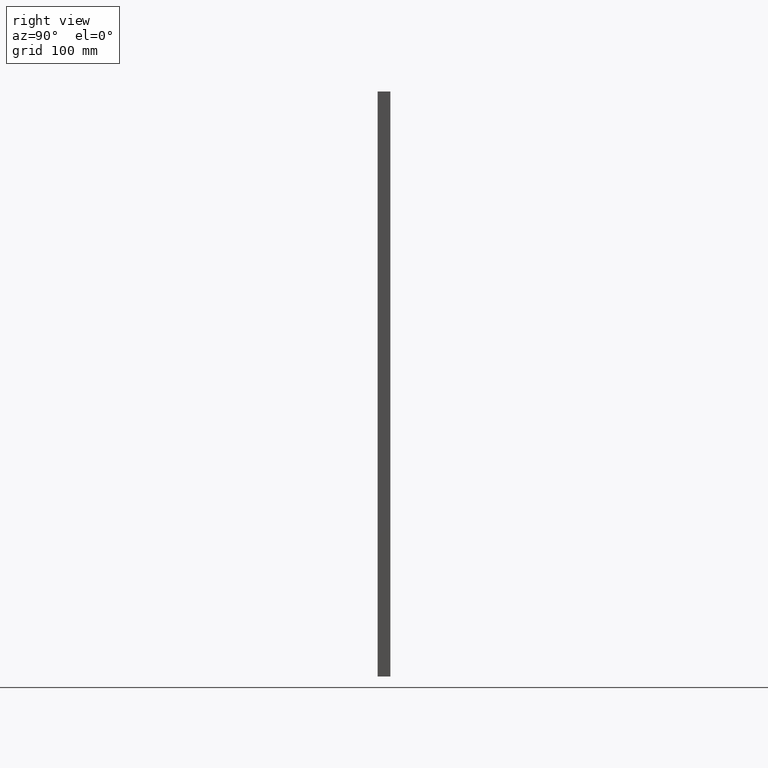
[diagram: clean part render]
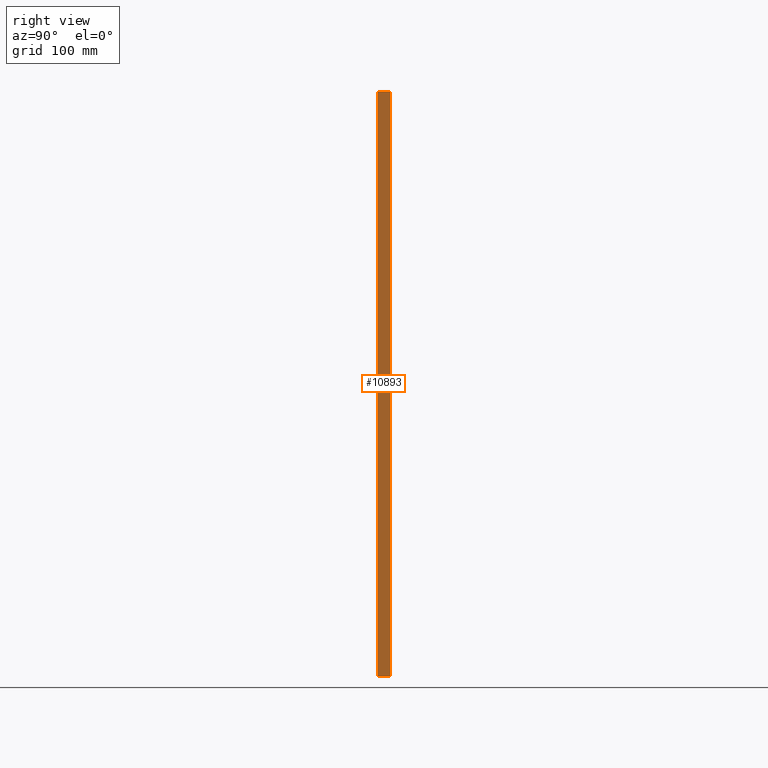
[diagram: same view with one face highlighted and labeled with its STEP entity id]
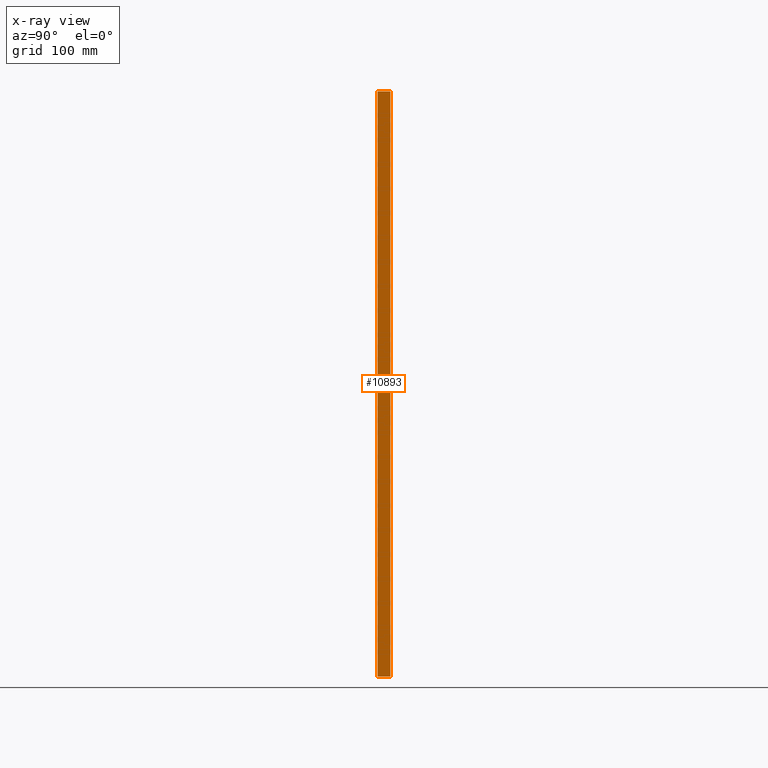
[diagram: x-ray of the same camera — body ghosted, the highlighted face saturated]
A machine part, right view. The second image highlights one B-rep face of the part: STEP entity #10893.
The next image is the same camera in x-ray: the body ghosted, the highlighted face saturated — about 0% of this face is hidden behind the body in this view.
In plain terms, the highlighted planar face has unit normal (-1, 0, 0).
Its self-contained STEP definition (entity closure, byte-faithful):
#85 = CARTESIAN_POINT ( 'NONE',  ( 225.0000000000000284, 13.00000000000000178, -300.0000000000000000 ) ) ;
#332 = CARTESIAN_POINT ( 'NONE',  ( 225.0000000000000568, 0.000000000000000000, 0.000000000000000000 ) ) ;
#702 = DIRECTION ( 'NONE',  ( -0.000000000000000000, -1.000000000000000000, -0.000000000000000000 ) ) ;
#1289 = ORIENTED_EDGE ( 'NONE', *, *, #3247, .T. ) ;
#1625 = LINE ( 'NONE', #10543, #12807 ) ;
#1787 = LINE ( 'NONE', #10127, #12411 ) ;
#2071 = CARTESIAN_POINT ( 'NONE',  ( 224.9999999999999716, 13.00000000000000178, -300.0000000000000000 ) ) ;
#3247 = EDGE_CURVE ( 'NONE', #5098, #13679, #1625, .T. ) ;
#4304 = VERTEX_POINT ( 'NONE', #8161 ) ;
#5098 = VERTEX_POINT ( 'NONE', #10541 ) ;
#5149 = DIRECTION ( 'NONE',  ( -0.000000000000000000, 1.000000000000000000, 0.000000000000000000 ) ) ;
#5151 = DIRECTION ( 'NONE',  ( -1.000000000000000000, 0.000000000000000000, 1.387778780781445922E-16 ) ) ;
#5291 = PLANE ( 'NONE',  #8990 ) ;
#5837 = LINE ( 'NONE', #332, #6912 ) ;
#6420 = DIRECTION ( 'NONE',  ( 1.387778780781445922E-16, 0.000000000000000000, 1.000000000000000000 ) ) ;
#6912 = VECTOR ( 'NONE', #12308, 1000.000000000000000 ) ;
#7491 = FACE_OUTER_BOUND ( 'NONE', #10649, .T. ) ;
#7540 = CARTESIAN_POINT ( 'NONE',  ( 225.0000000000000568, 13.00000000000000178, 300.0000000000000000 ) ) ;
#7771 = ORIENTED_EDGE ( 'NONE', *, *, #9223, .T. ) ;
#8161 = CARTESIAN_POINT ( 'NONE',  ( 225.0000000000000568, 0.000000000000000000, 300.0000000000000000 ) ) ;
#8990 = AXIS2_PLACEMENT_3D ( 'NONE', #2071, #5151, #6420 ) ;
#9223 = EDGE_CURVE ( 'NONE', #12945, #4304, #9681, .T. ) ;
#9681 = LINE ( 'NONE', #7540, #11683 ) ;
#9683 = EDGE_CURVE ( 'NONE', #5098, #4304, #5837, .T. ) ;
#10127 = CARTESIAN_POINT ( 'NONE',  ( 225.0000000000000568, 13.00000000000000178, 0.000000000000000000 ) ) ;
#10541 = CARTESIAN_POINT ( 'NONE',  ( 225.0000000000000284, 0.000000000000000000, -300.0000000000000000 ) ) ;
#10543 = CARTESIAN_POINT ( 'NONE',  ( 224.9999999999999716, 13.00000000000000178, -300.0000000000000000 ) ) ;
#10649 = EDGE_LOOP ( 'NONE', ( #1289, #11717, #7771, #12784 ) ) ;
#10713 = EDGE_CURVE ( 'NONE', #12945, #13679, #1787, .T. ) ;
#10893 = ADVANCED_FACE ( 'NONE', ( #7491 ), #5291, .F. ) ;
#11340 = DIRECTION ( 'NONE',  ( -0.000000000000000000, 0.000000000000000000, -1.000000000000000000 ) ) ;
#11683 = VECTOR ( 'NONE', #702, 1000.000000000000000 ) ;
#11717 = ORIENTED_EDGE ( 'NONE', *, *, #10713, .F. ) ;
#12308 = DIRECTION ( 'NONE',  ( 0.000000000000000000, -0.000000000000000000, 1.000000000000000000 ) ) ;
#12411 = VECTOR ( 'NONE', #11340, 1000.000000000000000 ) ;
#12784 = ORIENTED_EDGE ( 'NONE', *, *, #9683, .F. ) ;
#12799 = CARTESIAN_POINT ( 'NONE',  ( 225.0000000000000568, 13.00000000000000178, 300.0000000000000000 ) ) ;
#12807 = VECTOR ( 'NONE', #5149, 1000.000000000000000 ) ;
#12945 = VERTEX_POINT ( 'NONE', #12799 ) ;
#13679 = VERTEX_POINT ( 'NONE', #85 ) ;